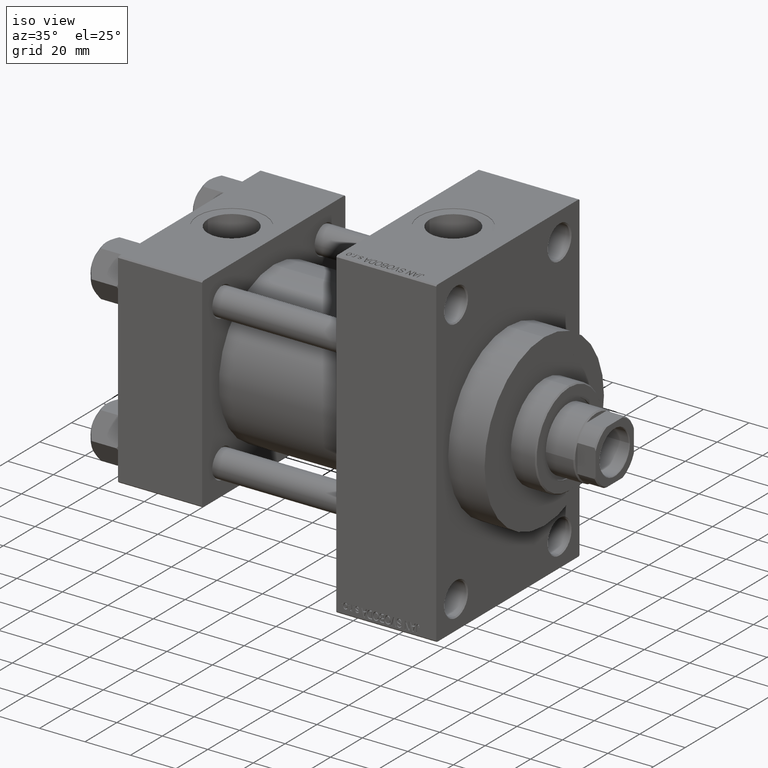
[diagram: clean part render]
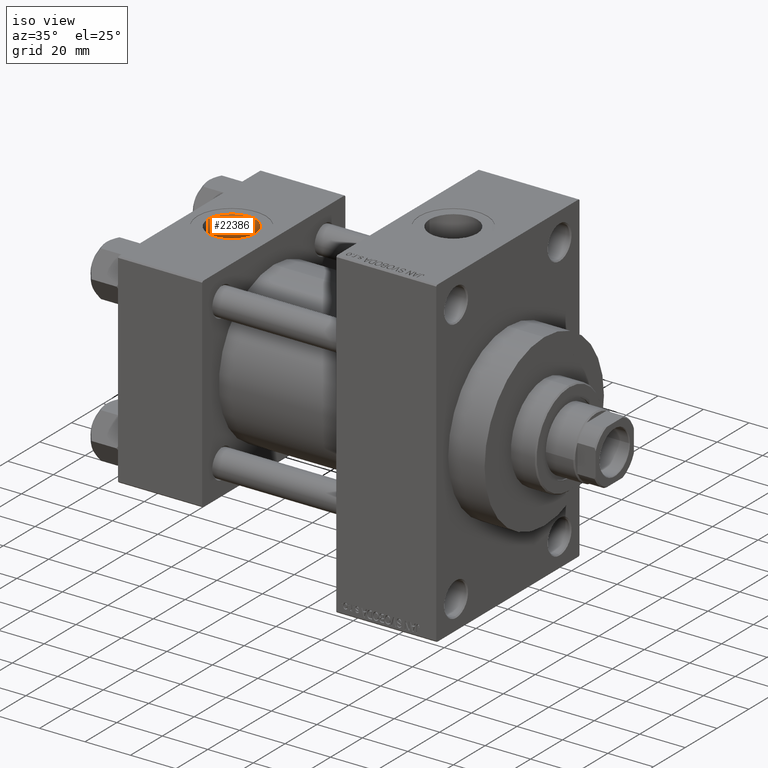
[diagram: same view with one face highlighted and labeled with its STEP entity id]
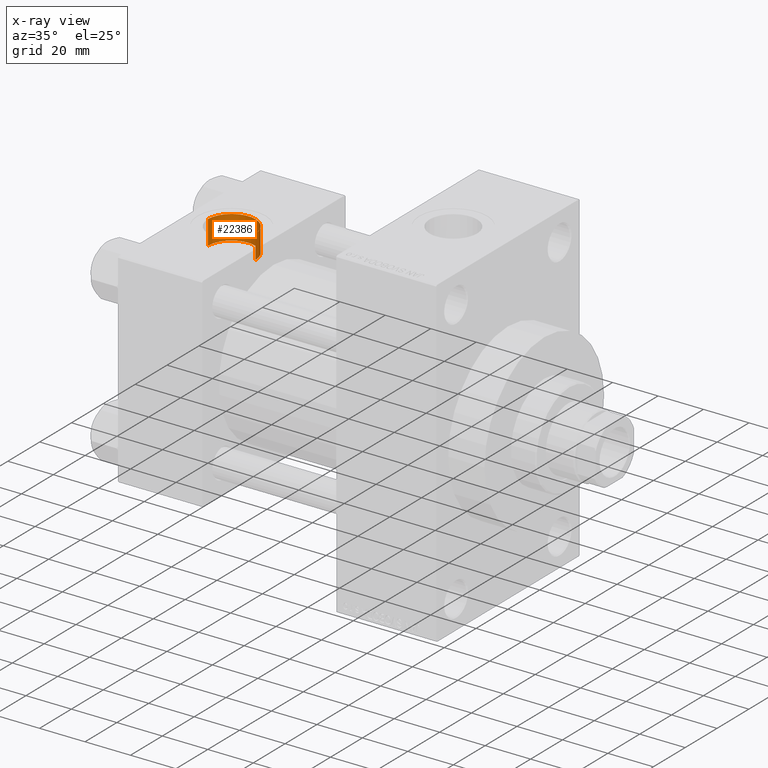
[diagram: x-ray of the same camera — body ghosted, the highlighted face saturated]
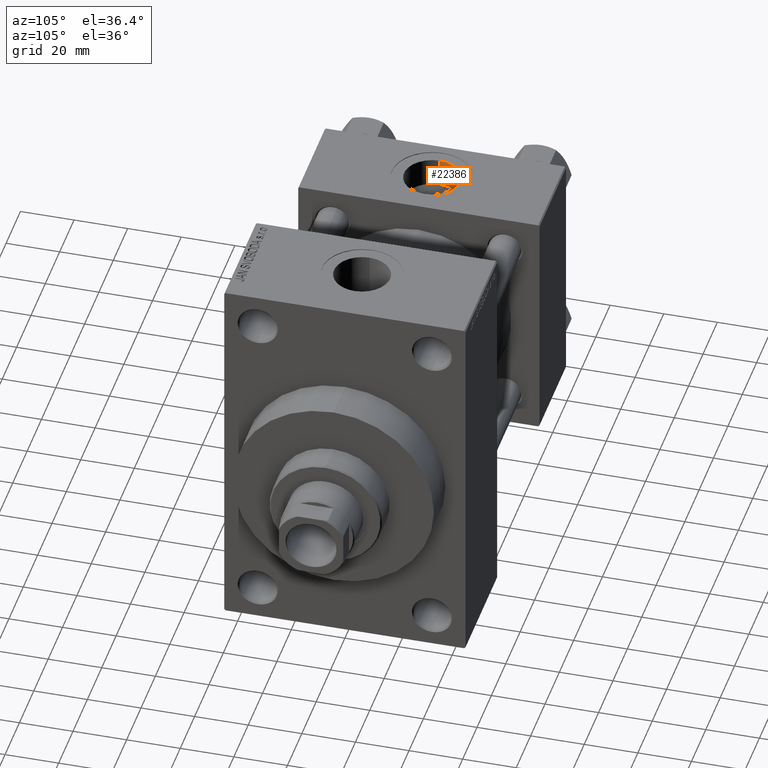
[diagram: same view with one face highlighted and labeled with its STEP entity id]
A machine part, iso view. The second image highlights one B-rep face of the part: STEP entity #22386.
The next image is the same camera in x-ray: the body ghosted, the highlighted face saturated — about 0% of this face is hidden behind the body in this view.
A second angle (auxiliary view) of the same face is appended — the face is thin or edge-on in the first view.
In plain terms, the highlighted cylindrical surface (edge-blend (fillet) strip) has radius 10.48 mm, axis along (0, 0, 1).
Its self-contained STEP definition (entity closure, byte-faithful):
#47 = EDGE_CURVE ( 'NONE', #11839, #25362, #324, .T. ) ;
#324 = CIRCLE ( 'NONE', #12518, 10.48000000000000043 ) ;
#801 = CARTESIAN_POINT ( 'NONE',  ( 8.019999999999999574, -7.390187534377611561E-15, 44.80000000000000426 ) ) ;
#3480 = DIRECTION ( 'NONE',  ( -0.000000000000000000, -0.000000000000000000, 1.000000000000000000 ) ) ;
#4234 = DIRECTION ( 'NONE',  ( -0.000000000000000000, -0.000000000000000000, 1.000000000000000000 ) ) ;
#5844 = ORIENTED_EDGE ( 'NONE', *, *, #37759, .T. ) ;
#6234 = DIRECTION ( 'NONE',  ( 0.000000000000000000, 0.000000000000000000, 1.000000000000000000 ) ) ;
#10359 = VERTEX_POINT ( 'NONE', #801 ) ;
#11577 = VECTOR ( 'NONE', #27245, 1000.000000000000000 ) ;
#11839 = VERTEX_POINT ( 'NONE', #29087 ) ;
#11863 = DIRECTION ( 'NONE',  ( 1.000000000000000000, 0.000000000000000000, 0.000000000000000000 ) ) ;
#12518 = AXIS2_PLACEMENT_3D ( 'NONE', #27966, #45864, #39152 ) ;
#15690 = CARTESIAN_POINT ( 'NONE',  ( 18.50000000000000000, -8.673617379884038628E-15, 34.20000000000000995 ) ) ;
#18133 = ORIENTED_EDGE ( 'NONE', *, *, #47, .F. ) ;
#18216 = EDGE_CURVE ( 'NONE', #25362, #10359, #20084, .T. ) ;
#18568 = ORIENTED_EDGE ( 'NONE', *, *, #18216, .F. ) ;
#20084 = LINE ( 'NONE', #20325, #11577 ) ;
#20325 = CARTESIAN_POINT ( 'NONE',  ( 8.019999999999999574, -7.390187534377611561E-15, 34.20000000000000995 ) ) ;
#20498 = CIRCLE ( 'NONE', #47150, 10.48000000000000043 ) ;
#21999 = EDGE_CURVE ( 'NONE', #11839, #37476, #32597, .T. ) ;
#22386 = ADVANCED_FACE ( 'NONE', ( #37628 ), #37398, .F. ) ;
#23945 = AXIS2_PLACEMENT_3D ( 'NONE', #15690, #4234, #11863 ) ;
#24279 = CARTESIAN_POINT ( 'NONE',  ( 28.98000000000000043, -8.673617379884038628E-15, 44.80000000000000426 ) ) ;
#25362 = VERTEX_POINT ( 'NONE', #25623 ) ;
#25623 = CARTESIAN_POINT ( 'NONE',  ( 8.019999999999999574, -7.390187534377611561E-15, 34.20000000000000995 ) ) ;
#27245 = DIRECTION ( 'NONE',  ( -0.000000000000000000, -0.000000000000000000, 1.000000000000000000 ) ) ;
#27748 = VECTOR ( 'NONE', #3480, 1000.000000000000000 ) ;
#27966 = CARTESIAN_POINT ( 'NONE',  ( 18.50000000000000000, -8.673617379884038628E-15, 34.20000000000000995 ) ) ;
#27972 = DIRECTION ( 'NONE',  ( 1.000000000000000000, 0.000000000000000000, 0.000000000000000000 ) ) ;
#29087 = CARTESIAN_POINT ( 'NONE',  ( 28.98000000000000043, -8.673617379884038628E-15, 34.20000000000000995 ) ) ;
#32597 = LINE ( 'NONE', #36167, #27748 ) ;
#36066 = EDGE_LOOP ( 'NONE', ( #18568, #18133, #42610, #5844 ) ) ;
#36167 = CARTESIAN_POINT ( 'NONE',  ( 28.98000000000000043, -8.673617379884038628E-15, 34.20000000000000995 ) ) ;
#37398 = CYLINDRICAL_SURFACE ( 'NONE', #23945, 10.48000000000000043 ) ;
#37476 = VERTEX_POINT ( 'NONE', #24279 ) ;
#37628 = FACE_OUTER_BOUND ( 'NONE', #36066, .T. ) ;
#37759 = EDGE_CURVE ( 'NONE', #37476, #10359, #20498, .T. ) ;
#39152 = DIRECTION ( 'NONE',  ( 1.000000000000000000, 0.000000000000000000, 0.000000000000000000 ) ) ;
#39394 = CARTESIAN_POINT ( 'NONE',  ( 18.50000000000000000, -8.673617379884038628E-15, 44.80000000000000426 ) ) ;
#42610 = ORIENTED_EDGE ( 'NONE', *, *, #21999, .T. ) ;
#45864 = DIRECTION ( 'NONE',  ( 0.000000000000000000, 0.000000000000000000, 1.000000000000000000 ) ) ;
#47150 = AXIS2_PLACEMENT_3D ( 'NONE', #39394, #6234, #27972 ) ;